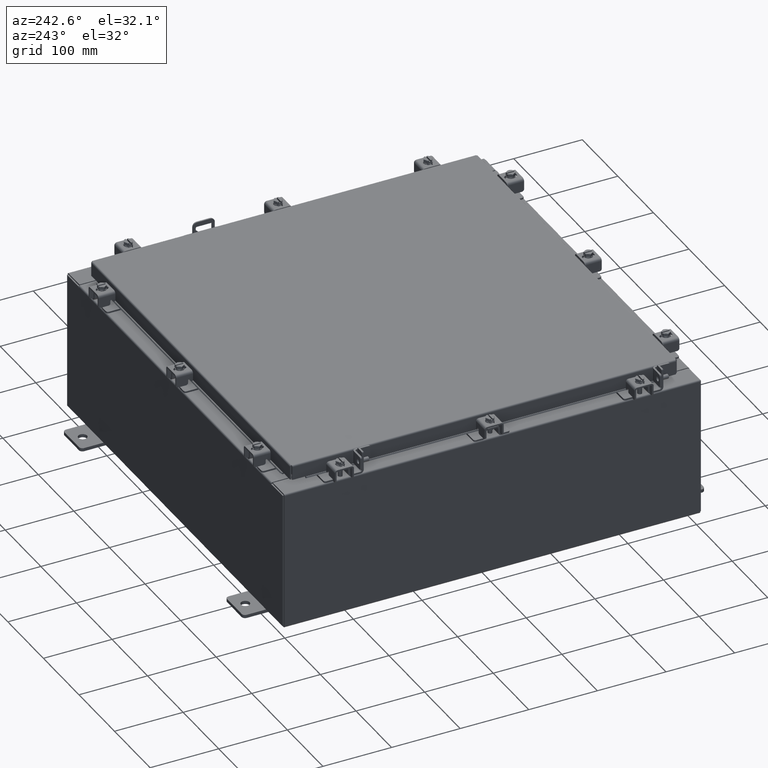
[diagram: clean part render]
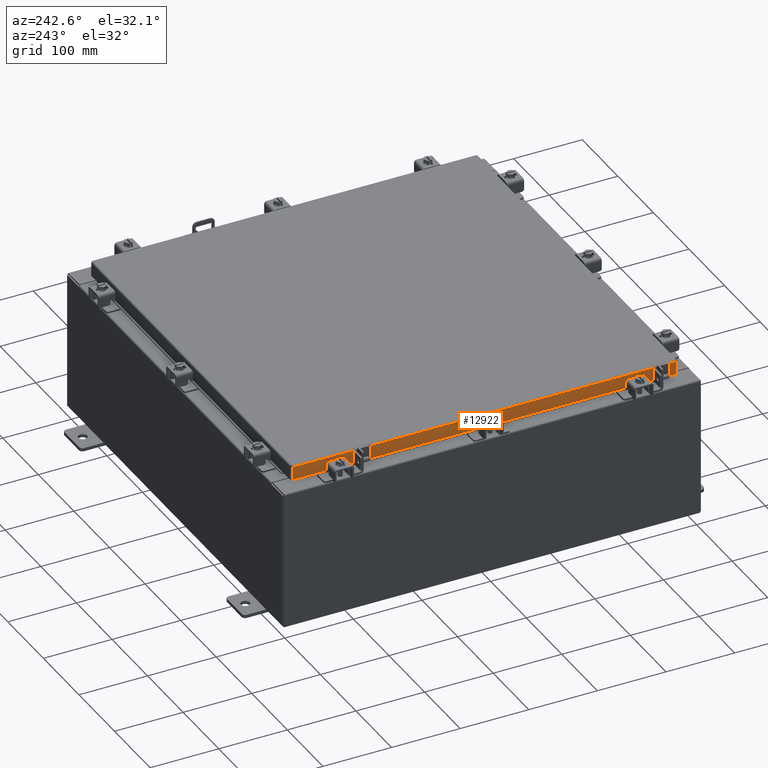
[diagram: same view with one face highlighted and labeled with its STEP entity id]
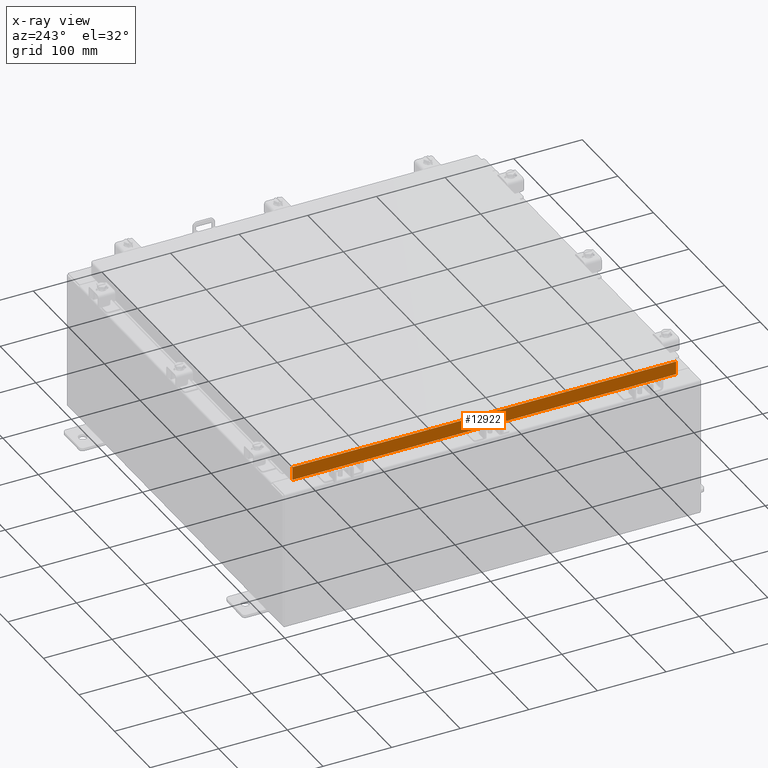
[diagram: x-ray of the same camera — body ghosted, the highlighted face saturated]
A machine part, auxiliary view. The second image highlights one B-rep face of the part: STEP entity #12922.
The next image is the same camera in x-ray: the body ghosted, the highlighted face saturated — about 0% of this face is hidden behind the body in this view.
In plain terms, the highlighted planar face has unit normal (1, 0, -0).
Its self-contained STEP definition (entity closure, byte-faithful):
#39 = CARTESIAN_POINT ( 'NONE',  ( -11.09399999999999900, -11.00515786437626700, -0.08770000000000026400 ) ) ;
#204 = CARTESIAN_POINT ( 'NONE',  ( -11.09400000000000100, 11.00515786437627100, -0.8499999999999966500 ) ) ;
#211 = EDGE_LOOP ( 'NONE', ( #20796, #5546, #1025, #9176, #7760, #18621 ) ) ;
#1025 = ORIENTED_EDGE ( 'NONE', *, *, #11675, .F. ) ;
#1823 = LINE ( 'NONE', #13722, #5898 ) ;
#1855 = DIRECTION ( 'NONE',  ( -2.818880942772360100E-015, 6.982962677686267500E-015, -1.000000000000000000 ) ) ;
#1893 = FACE_OUTER_BOUND ( 'NONE', #211, .T. ) ;
#2669 = CARTESIAN_POINT ( 'NONE',  ( -11.09399999999999900, -11.00515786437626700, -0.07470000000000015500 ) ) ;
#2926 = CARTESIAN_POINT ( 'NONE',  ( -11.09400000000000100, -11.09400000000000100, -0.8499999999999999800 ) ) ;
#3547 = AXIS2_PLACEMENT_3D ( 'NONE', #14945, #11389, #7955 ) ;
#3891 = EDGE_CURVE ( 'NONE', #13789, #20253, #19670, .T. ) ;
#4965 = DIRECTION ( 'NONE',  ( 4.379057701015054300E-047, 1.000000000000000000, 1.169666303398706800E-016 ) ) ;
#4979 = VECTOR ( 'NONE', #14908, 39.37007874015748100 ) ;
#5546 = ORIENTED_EDGE ( 'NONE', *, *, #20911, .T. ) ;
#5898 = VECTOR ( 'NONE', #4965, 39.37007874015748100 ) ;
#6192 = PLANE ( 'NONE',  #3547 ) ;
#7014 = CARTESIAN_POINT ( 'NONE',  ( -11.09400000000000100, -11.00515786437626200, -0.8499999999999999800 ) ) ;
#7075 = EDGE_CURVE ( 'NONE', #9604, #13789, #1823, .T. ) ;
#7433 = CARTESIAN_POINT ( 'NONE',  ( -11.09399999999999200, 10.25515786437627200, -0.8500000000000020900 ) ) ;
#7550 = CARTESIAN_POINT ( 'NONE',  ( -11.09399999999999200, -10.25515786437626400, -0.8500000000000020900 ) ) ;
#7760 = ORIENTED_EDGE ( 'NONE', *, *, #7075, .F. ) ;
#7955 = DIRECTION ( 'NONE',  ( -2.818880942772360100E-015, 0.0000000000000000000, -1.000000000000000000 ) ) ;
#8507 = VERTEX_POINT ( 'NONE', #204 ) ;
#8712 = VECTOR ( 'NONE', #17297, 39.37007874015748100 ) ;
#9176 = ORIENTED_EDGE ( 'NONE', *, *, #3891, .F. ) ;
#9604 = VERTEX_POINT ( 'NONE', #7014 ) ;
#10567 = EDGE_CURVE ( 'NONE', #11247, #9604, #17874, .T. ) ;
#11247 = VERTEX_POINT ( 'NONE', #39 ) ;
#11389 = DIRECTION ( 'NONE',  ( 1.000000000000000000, 3.297150052053607500E-031, -2.818880942772360100E-015 ) ) ;
#11675 = EDGE_CURVE ( 'NONE', #20253, #8507, #16198, .T. ) ;
#11686 = DIRECTION ( 'NONE',  ( 4.379057701015054300E-047, 1.000000000000000000, 1.169666303398706800E-016 ) ) ;
#12922 = ADVANCED_FACE ( 'NONE', ( #1893 ), #6192, .F. ) ;
#13264 = LINE ( 'NONE', #16025, #21415 ) ;
#13722 = CARTESIAN_POINT ( 'NONE',  ( -11.09400000000000100, -11.09400000000000100, -0.8499999999999999800 ) ) ;
#13789 = VERTEX_POINT ( 'NONE', #7550 ) ;
#14908 = DIRECTION ( 'NONE',  ( -2.818880942772360100E-015, 6.982962677686267500E-015, -1.000000000000000000 ) ) ;
#14945 = CARTESIAN_POINT ( 'NONE',  ( -11.09399999999999900, 0.0000000000000000000, 3.168943672650545400E-014 ) ) ;
#15679 = VERTEX_POINT ( 'NONE', #18283 ) ;
#15873 = CARTESIAN_POINT ( 'NONE',  ( -11.09399999999999900, 11.00515786437626700, 1.081811805491048200E-013 ) ) ;
#16004 = VECTOR ( 'NONE', #1855, 39.37007874015748100 ) ;
#16025 = CARTESIAN_POINT ( 'NONE',  ( -11.09399999999999900, -11.09400000000000100, -0.08770000000000026400 ) ) ;
#16198 = LINE ( 'NONE', #2926, #20256 ) ;
#16562 = LINE ( 'NONE', #15873, #16004 ) ;
#17297 = DIRECTION ( 'NONE',  ( -0.0000000000000000000, 1.000000000000000000, -0.0000000000000000000 ) ) ;
#17874 = LINE ( 'NONE', #2669, #4979 ) ;
#18283 = CARTESIAN_POINT ( 'NONE',  ( -11.09399999999999900, 11.00515786437626900, -0.08770000000000026400 ) ) ;
#18430 = CARTESIAN_POINT ( 'NONE',  ( -11.09399999999999200, -10.25515786437626400, -0.8500000000000020900 ) ) ;
#18621 = ORIENTED_EDGE ( 'NONE', *, *, #10567, .F. ) ;
#19510 = DIRECTION ( 'NONE',  ( 3.297150052053608400E-031, -1.000000000000000000, -8.987264781119276500E-046 ) ) ;
#19670 = LINE ( 'NONE', #18430, #8712 ) ;
#20253 = VERTEX_POINT ( 'NONE', #7433 ) ;
#20256 = VECTOR ( 'NONE', #11686, 39.37007874015748100 ) ;
#20796 = ORIENTED_EDGE ( 'NONE', *, *, #21136, .F. ) ;
#20911 = EDGE_CURVE ( 'NONE', #15679, #8507, #16562, .T. ) ;
#21136 = EDGE_CURVE ( 'NONE', #15679, #11247, #13264, .T. ) ;
#21415 = VECTOR ( 'NONE', #19510, 39.37007874015748100 ) ;